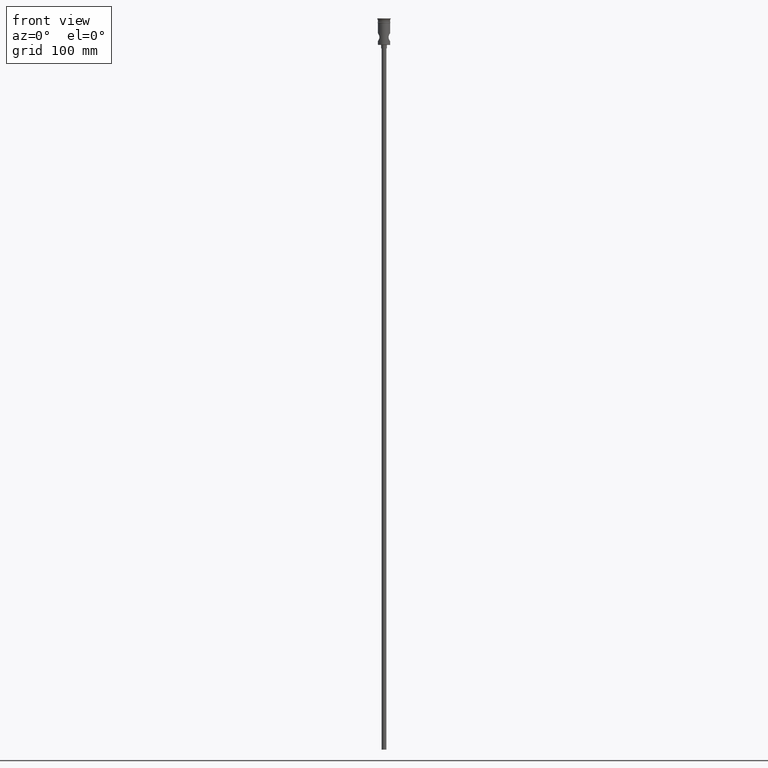
[diagram: clean part render]
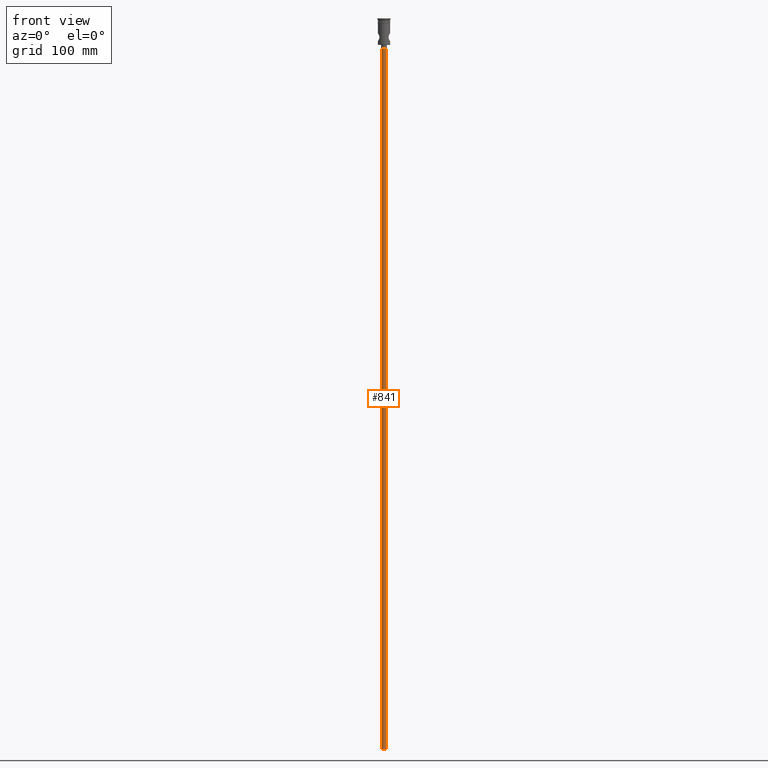
[diagram: same view with one face highlighted and labeled with its STEP entity id]
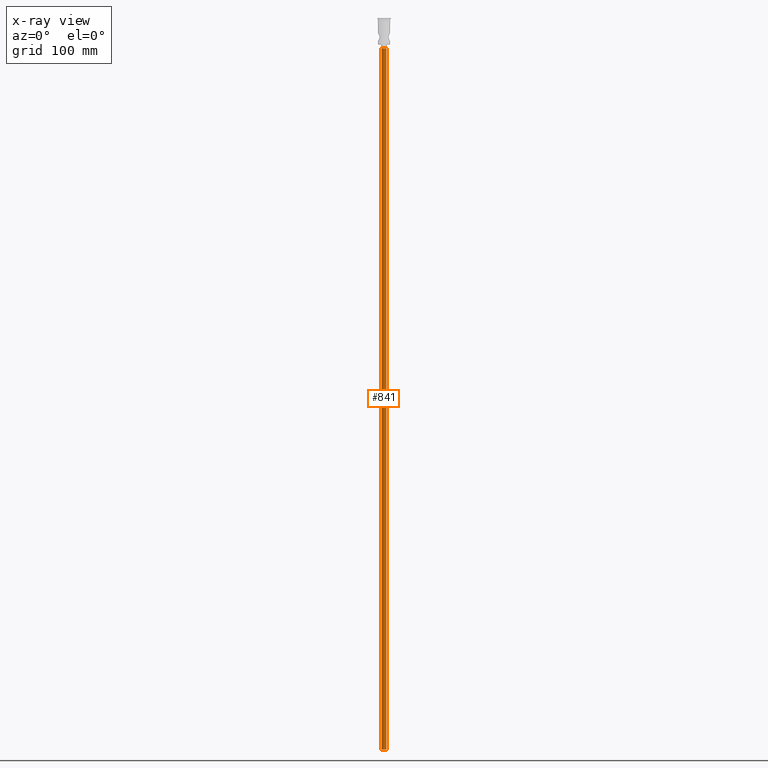
[diagram: x-ray of the same camera — body ghosted, the highlighted face saturated]
A machine part, front view. The second image highlights one B-rep face of the part: STEP entity #841.
The next image is the same camera in x-ray: the body ghosted, the highlighted face saturated — about 0% of this face is hidden behind the body in this view.
In plain terms, the highlighted cylindrical surface (edge-blend (fillet) strip) has radius 2 mm, axis along (-0, -0, 1).
Its self-contained STEP definition (entity closure, byte-faithful):
#19 = DIRECTION ( 'NONE',  ( 0.000000000000000000, 0.000000000000000000, -1.000000000000000000 ) ) ;
#20 = CYLINDRICAL_SURFACE ( 'NONE', #995, 2.000000000000000000 ) ;
#44 = DIRECTION ( 'NONE',  ( 0.000000000000000000, 0.000000000000000000, -1.000000000000000000 ) ) ;
#89 = EDGE_CURVE ( 'NONE', #754, #828, #613, .T. ) ;
#109 = CIRCLE ( 'NONE', #559, 2.000000000000000000 ) ;
#259 = CARTESIAN_POINT ( 'NONE',  ( -2.000000000000000000, 2.449293598294706414E-16, -622.4999999999998863 ) ) ;
#263 = CARTESIAN_POINT ( 'NONE',  ( -2.000000000000000000, 2.449293598294706414E-16, -25.50000000000000000 ) ) ;
#335 = EDGE_LOOP ( 'NONE', ( #1452, #1106, #1115, #685 ) ) ;
#350 = CARTESIAN_POINT ( 'NONE',  ( 0.000000000000000000, 0.000000000000000000, -622.4999999999998863 ) ) ;
#357 = CIRCLE ( 'NONE', #1180, 2.000000000000000000 ) ;
#426 = EDGE_CURVE ( 'NONE', #556, #671, #1391, .T. ) ;
#499 = EDGE_CURVE ( 'NONE', #671, #828, #109, .T. ) ;
#556 = VERTEX_POINT ( 'NONE', #575 ) ;
#559 = AXIS2_PLACEMENT_3D ( 'NONE', #1112, #19, #891 ) ;
#575 = CARTESIAN_POINT ( 'NONE',  ( 2.000000000000000000, 0.000000000000000000, -622.4999999999998863 ) ) ;
#585 = CARTESIAN_POINT ( 'NONE',  ( 0.000000000000000000, 0.000000000000000000, -622.4999999999998863 ) ) ;
#613 = LINE ( 'NONE', #259, #1368 ) ;
#671 = VERTEX_POINT ( 'NONE', #1016 ) ;
#679 = DIRECTION ( 'NONE',  ( -0.000000000000000000, -0.000000000000000000, 1.000000000000000000 ) ) ;
#682 = DIRECTION ( 'NONE',  ( -0.000000000000000000, -0.000000000000000000, 1.000000000000000000 ) ) ;
#685 = ORIENTED_EDGE ( 'NONE', *, *, #499, .T. ) ;
#720 = VECTOR ( 'NONE', #1025, 1000.000000000000000 ) ;
#754 = VERTEX_POINT ( 'NONE', #824 ) ;
#824 = CARTESIAN_POINT ( 'NONE',  ( -2.000000000000000000, 2.449293598294706414E-16, -622.4999999999998863 ) ) ;
#828 = VERTEX_POINT ( 'NONE', #263 ) ;
#841 = ADVANCED_FACE ( 'NONE', ( #1367 ), #20, .T. ) ;
#891 = DIRECTION ( 'NONE',  ( -1.000000000000000000, 0.000000000000000000, 0.000000000000000000 ) ) ;
#924 = DIRECTION ( 'NONE',  ( -1.000000000000000000, 0.000000000000000000, 0.000000000000000000 ) ) ;
#995 = AXIS2_PLACEMENT_3D ( 'NONE', #350, #682, #1355 ) ;
#1016 = CARTESIAN_POINT ( 'NONE',  ( 2.000000000000000000, 0.000000000000000000, -25.50000000000000000 ) ) ;
#1025 = DIRECTION ( 'NONE',  ( -0.000000000000000000, -0.000000000000000000, 1.000000000000000000 ) ) ;
#1050 = CARTESIAN_POINT ( 'NONE',  ( 2.000000000000000000, 0.000000000000000000, -622.4999999999998863 ) ) ;
#1106 = ORIENTED_EDGE ( 'NONE', *, *, #1140, .F. ) ;
#1112 = CARTESIAN_POINT ( 'NONE',  ( 0.000000000000000000, 0.000000000000000000, -25.50000000000000000 ) ) ;
#1115 = ORIENTED_EDGE ( 'NONE', *, *, #426, .T. ) ;
#1140 = EDGE_CURVE ( 'NONE', #556, #754, #357, .T. ) ;
#1180 = AXIS2_PLACEMENT_3D ( 'NONE', #585, #44, #924 ) ;
#1355 = DIRECTION ( 'NONE',  ( 1.000000000000000000, 0.000000000000000000, 0.000000000000000000 ) ) ;
#1367 = FACE_OUTER_BOUND ( 'NONE', #335, .T. ) ;
#1368 = VECTOR ( 'NONE', #679, 1000.000000000000000 ) ;
#1391 = LINE ( 'NONE', #1050, #720 ) ;
#1452 = ORIENTED_EDGE ( 'NONE', *, *, #89, .F. ) ;